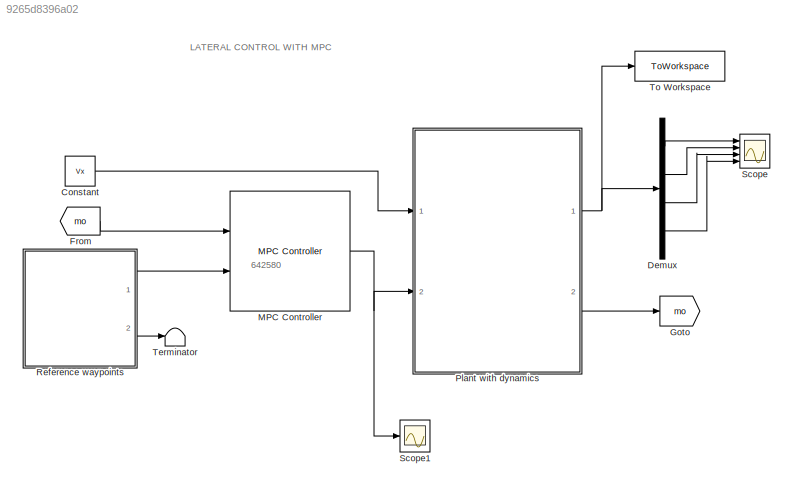
MODEL slx_9265d8396a02
KIND model
CONFIG AbsTol = auto
CONFIG EnableMultiTasking = off
CONFIG FixedStep = 0.1
CONFIG MaxStep = auto
CONFIG MinStep = auto
CONFIG RelTol = 1e-3
CONFIG SampleTimeConstraint = Unconstrained
CONFIG SolverName = VariableStepAuto
CONFIG StartTime = 0.0
CONFIG StopTime = Ts
BLOCK [Constant] Constant
  Value = Vx
BLOCK [Demux] Demux
  Ports = [1, 4]
BLOCK [From] From
  GotoTag = mo
BLOCK [Goto] Goto
  GotoTag = mo
BLOCK [Reference] MPC Controller  REF=mpclib/MPC Controller  (lib defined in mdl_ae329e0e0455)
  Ports = [2, 1]
  SCDEnableBlockLinearizationSpecification = on
  SourceBlock = mpclib/MPC Controller
  SourceProductBaseCode = MP
  SourceType = MPC
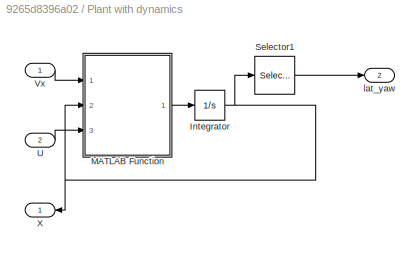
BLOCK [SubSystem] Plant with dynamics
  Ports = [2, 2]
  RequestExecContextInheritance = off
BLOCK [Integrator] Plant with dynamics/Integrator
  Ports = [1, 1]
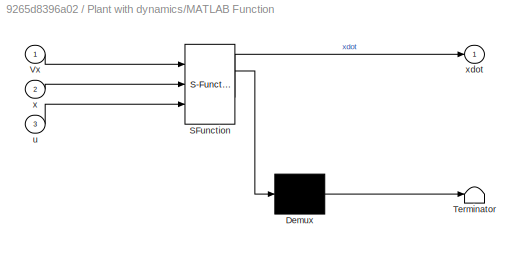
BLOCK [SubSystem] Plant with dynamics/MATLAB Function
  ErrorFcn = Stateflow.Translate.translate
  PermitHierarchicalResolution = ExplicitOnly
  Ports = [3, 1]
  RequestExecContextInheritance = off
  SFBlockType = MATLAB Function
  TreatAsAtomicUnit = on
BLOCK [Demux] Plant with dynamics/MATLAB Function/ Demux 
  Outputs = 1
  Ports = [1, 1]
BLOCK [S-Function] Plant with dynamics/MATLAB Function/ SFunction 
  EnableBusSupport = on
  FunctionName = sf_sfun
  PortCounts = [3 2]
  Ports = [3, 2]
  SFcnIsStateOwnerBlock = off
  SFunctionDeploymentMode = off
  Tag = Stateflow S-Function 1
BLOCK [Terminator] Plant with dynamics/MATLAB Function/ Terminator 
BLOCK [Inport] Plant with dynamics/MATLAB Function/Vx
BLOCK [Inport] Plant with dynamics/MATLAB Function/u
  Port = 3
BLOCK [Inport] Plant with dynamics/MATLAB Function/x
  Port = 2
BLOCK [Outport] Plant with dynamics/MATLAB Function/xdot
  VectorParamsAs1DForOutWhenUnconnected = off
BLOCK [Selector] Plant with dynamics/Selector1
  IndexOptions = Index vector (dialog)
  Indices = [4 2]
  InputPortWidth = 4
  OutputSizes = 1
  Ports = [1, 1]
BLOCK [Inport] Plant with dynamics/U
  Port = 2
BLOCK [Inport] Plant with dynamics/Vx
BLOCK [Outport] Plant with dynamics/X
  NameLocation = top
  VectorParamsAs1DForOutWhenUnconnected = off
BLOCK [Outport] Plant with dynamics/lat_yaw
  NameLocation = top
  Port = 2
  VectorParamsAs1DForOutWhenUnconnected = off
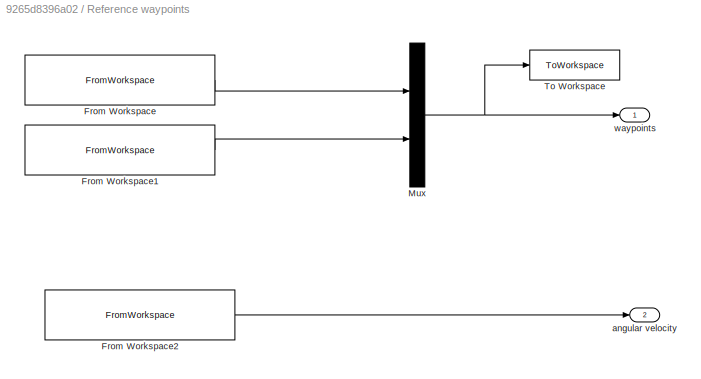
BLOCK [SubSystem] Reference waypoints
  Ports = [0, 2]
  RequestExecContextInheritance = off
BLOCK [FromWorkspace] Reference waypoints/From Workspace
  SampleTime = 0.1
  VariableName = [tRef,yRef']
BLOCK [FromWorkspace] Reference waypoints/From Workspace1
  SampleTime = 0.1
  VariableName = [tRef,deg2rad(yawRef)']
BLOCK [FromWorkspace] Reference waypoints/From Workspace2
  SampleTime = 0.1
  VariableName = [tRef,deg2rad(yaw_rate_pose)']
BLOCK [Mux] Reference waypoints/Mux
  DisplayOption = bar
  Inputs = 2
  Ports = [2, 1]
BLOCK [ToWorkspace] Reference waypoints/To Workspace
  FixptAsFi = on
  MaxDataPoints = inf
  Ports = [1]
  SampleTime = -1
  VariableName = ref_points
BLOCK [Outport] Reference waypoints/angular velocity
  Port = 2
BLOCK [Outport] Reference waypoints/waypoints
BLOCK [Scope] Scope
  Floating = off
  NumInputPorts = 4
  Ports = [4]
  ScopeSpecificationString = Simulink.scopes.TimeScopeBlockCfg('CurrentConfiguration', extmgr.ConfigurationSet(extmgr.Configuration('Core','General UI',true),extmgr.Configuration('Core','Source UI',true),extmgr.Configuration('Sources','WiredSimulink',true),extmgr.Configuration('Visuals','Time Domain',true,'SerializedDisplays',{struct('MinYLimReal','-0.15222','MaxYLimReal','0.21585','YLabelReal','','MinYLimMag','0.00000','MaxY...<+3405ch>
BLOCK [Scope] Scope1
  Floating = off
  NumInputPorts = 1
  Ports = [1]
  ScopeSpecificationString = Simulink.scopes.TimeScopeBlockCfg('CurrentConfiguration', extmgr.ConfigurationSet(extmgr.Configuration('Core','General UI',true),extmgr.Configuration('Core','Source UI',true),extmgr.Configuration('Sources','WiredSimulink',true,'DataLoggingVariableName','ScopeData1'),extmgr.Configuration('Visuals','Time Domain',true,'SerializedDisplays',{struct('MinYLimReal','-0.10486','MaxYLimReal','0.17164','YLab...<+1402ch>
BLOCK [Terminator] Terminator
BLOCK [ToWorkspace] To Workspace
  FixptAsFi = on
  MaxDataPoints = inf
  Ports = [1]
  SampleTime = -1
  VariableName = X_state
ANNOTATION (root): LATERAL CONTROL WITH MPC
ANNOTATION (root): 642580
LINE Constant:1 -> Plant with dynamics:1
LINE Demux:1 -> Scope:1
LINE Demux:2 -> Scope:2
LINE Demux:3 -> Scope:3
LINE Demux:4 -> Scope:4
LINE From:1 -> MPC Controller:1
NET MPC Controller:1 -> Plant with dynamics:2, Scope1:1
NET Plant with dynamics/Integrator:1 -> Plant with dynamics/MATLAB Function:2, Plant with dynamics/Selector1:1, Plant with dynamics/X:1
LINE Plant with dynamics/MATLAB Function:1 -> Plant with dynamics/Integrator:1
LINE Plant with dynamics/Selector1:1 -> Plant with dynamics/lat_yaw:1
LINE Plant with dynamics/U:1 -> Plant with dynamics/MATLAB Function:3
LINE Plant with dynamics/Vx:1 -> Plant with dynamics/MATLAB Function:1
NET Plant with dynamics:1 -> Demux:1, To Workspace:1
LINE Plant with dynamics:2 -> Goto:1
LINE Reference waypoints/From Workspace1:1 -> Reference waypoints/Mux:2
LINE Reference waypoints/From Workspace2:1 -> Reference waypoints/angular velocity:1
LINE Reference waypoints/From Workspace:1 -> Reference waypoints/Mux:1
NET Reference waypoints/Mux:1 -> Reference waypoints/To Workspace:1, Reference waypoints/waypoints:1
LINE Reference waypoints:1 -> MPC Controller:2
LINE Reference waypoints:2 -> Terminator:1
note: NET lines group one-source signal fan-out (src -> all destinations, sorted); 1:1 wires keep LINE
CHART Plant with dynamics/MATLAB Function states=1 transitions=1
  STATE_LABEL 'eML_blk_kernel()'
  STATE_LABEL "SCRIPT:\nfunction xdot = fcn(Vx,x,u)\n\n% Model parameters\nm = 1575;\nIz = 2875;\nlf = 1.2;\nlr = 1.6;\nCf = 19000;\nCr = 33000;\n\n% Continuous-time model\nA = [-(2*Cf+2*Cr)/m/Vx, 0, -Vx-(2*Cf*lf-2*Cr*lr)/m/Vx, 0;\n     0, 0, 1, 0;\n     -(2*Cf*lf-2*Cr*lr)/Iz/Vx, 0, -(2*Cf*lf^2+2*Cr*lr^2)/Iz/Vx, 0;\n     1, Vx, 0, 0];\nB = [2*Cf/m 0 2*Cf*lf/Iz 0]';   \nC = [0 0 0 1; 0 1 0 0];\nD = zeros(2,1);\nxdot = A*x + B*u;\n%y...<+14ch>"
CHART  states=0 transitions=0
